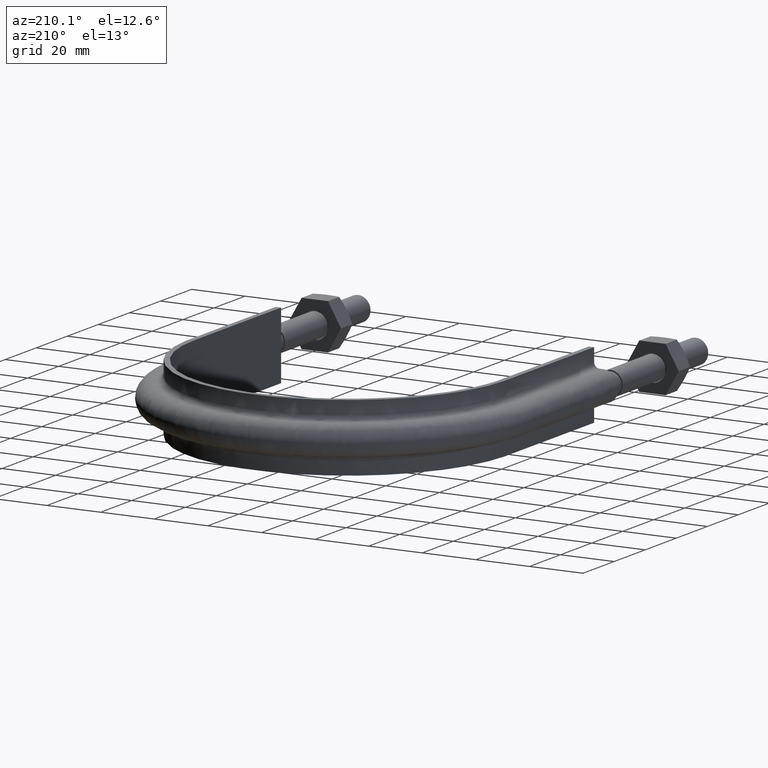
[diagram: clean part render]
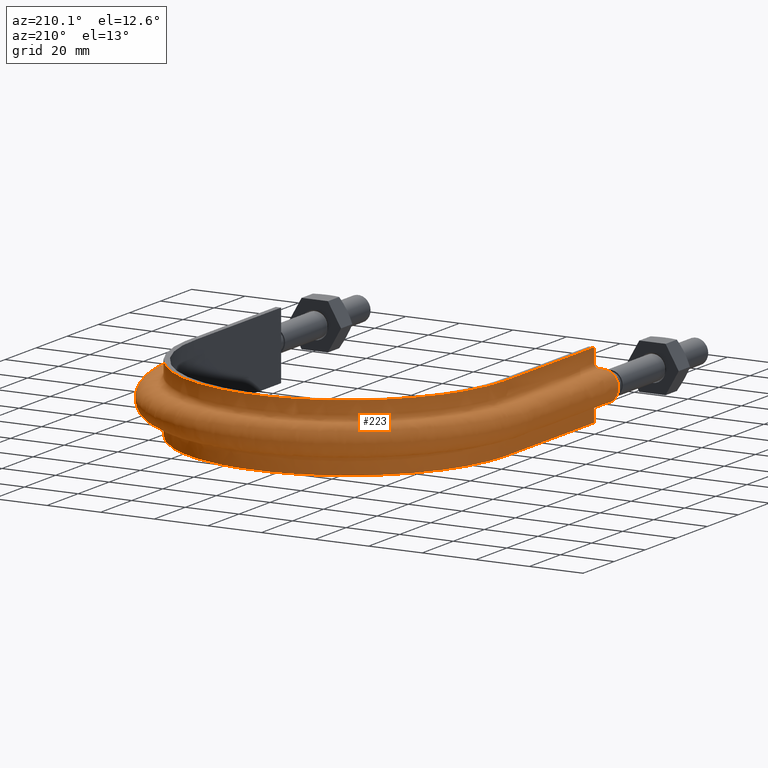
[diagram: same view with one face highlighted and labeled with its STEP entity id]
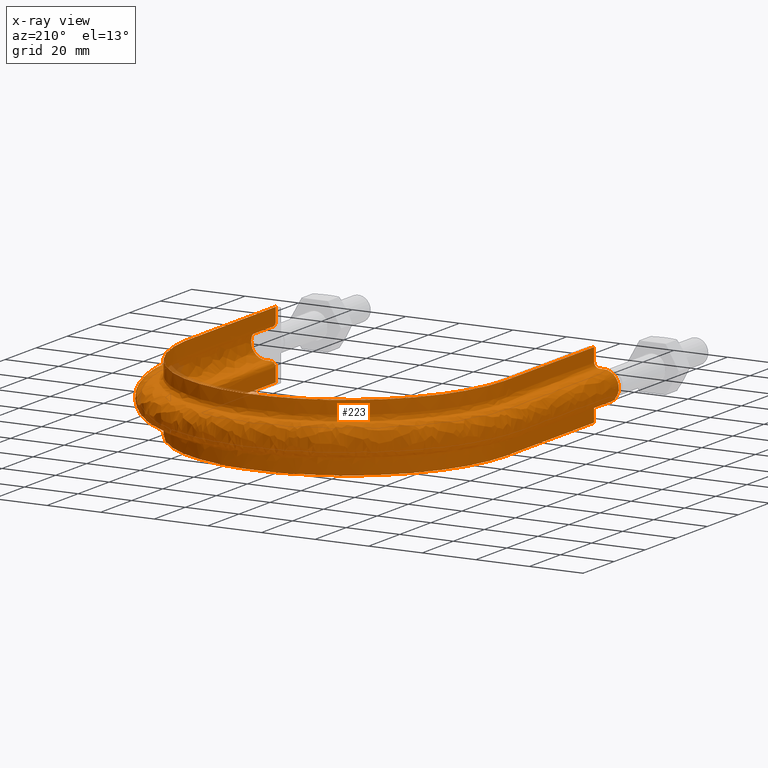
[diagram: x-ray of the same camera — body ghosted, the highlighted face saturated]
A machine part, auxiliary view. The second image highlights one B-rep face of the part: STEP entity #223.
The next image is the same camera in x-ray: the body ghosted, the highlighted face saturated — about 1% of this face is hidden behind the body in this view.
In plain terms, the highlighted face is a freeform B-spline surface patch.
Its self-contained STEP definition (entity closure, byte-faithful):
#223 = ADVANCED_FACE( '', ( #303 ), #304, .F. );
#303 = FACE_OUTER_BOUND( '', #471, .T. );
#304 = B_SPLINE_SURFACE_WITH_KNOTS( '', 3, 3, ( ( #472, #473, #474, #475, #476, #477, #478, #479, #480, #481, #482, #483, #484, #485, #486, #487 ), ( #488, #489, #490, #491, #492, #493, #494, #495, #496, #497, #498, #499, #500, #501, #502, #503 ), ( #504, #505, #506, #507, #508, #509, #510, #511, #512, #513, #514, #515, #516, #517, #518, #519 ), ( #520, #521, #522, #523, #524, #525, #526, #527, #528, #529, #530, #531, #532, #533, #534, #535 ), ( #536, #537, #538, #539, #540, #541, #542, #543, #544, #545, #546, #547, #548, #549, #550, #551 ), ( #552, #553, #554, #555, #556, #557, #558, #559, #560, #561, #562, #563, #564, #565, #566, #567 ), ( #568, #569, #570, #571, #572, #573, #574, #575, #576, #577, #578, #579, #580, #581, #582, #583 ), ( #584, #585, #586, #587, #588, #589, #590, #591, #592, #593, #594, #595, #596, #597, #598, #599 ), ( #600, #601, #602, #603, #604, #605, #606, #607, #608, #609, #610, #611, #612, #613, #614, #615 ), ( #616, #617, #618, #619, #620, #621, #622, #623, #624, #625, #626, #627, #628, #629, #630, #631 ), ( #632, #633, #634, #635, #636, #637, #638, #639, #640, #641, #642, #643, #644, #645, #646, #647 ), ( #648, #649, #650, #651, #652, #653, #654, #655, #656, #657, #658, #659, #660, #661, #662, #663 ), ( #664, #665, #666, #667, #668, #669, #670, #671, #672, #673, #674, #675, #676, #677, #678, #679 ), ( #680, #681, #682, #683, #684, #685, #686, #687, #688, #689, #690, #691, #692, #693, #694, #695 ), ( #696, #697, #698, #699, #700, #701, #702, #703, #704, #705, #706, #707, #708, #709, #710, #711 ), ( #712, #713, #714, #715, #716, #717, #718, #719, #720, #721, #722, #723, #724, #725, #726, #727 ), ( #728, #729, #730, #731, #732, #733, #734, #735, #736, #737, #738, #739, #740, #741, #742, #743 ), ( #744, #745, #746, #747, #748, #749, #750, #751, #752, #753, #754, #755, #756, #757, #758, #759 ), ( #760, #761, #762, #763, #764, #765, #766, #767, #768, #769, #770, #771, #772, #773, #774, #775 ), ( #776, #777, #778, #779, #780, #781, #782, #783, #784, #785, #786, #787, #788, #789, #790, #791 ), ( #792, #793, #794, #795, #796, #797, #798, #799, #800, #801, #802, #803, #804, #805, #806, #807 ), ( #808, #809, #810, #811, #812, #813, #814, #815, #816, #817, #818, #819, #820, #821, #822, #823 ), ( #824, #825, #826, #827, #828, #829, #830, #831, #832, #833, #834, #835, #836, #837, #838, #839 ), ( #840, #841, #842, #843, #844, #845, #846, #847, #848, #849, #850, #851, #852, #853, #854, #855 ), ( #856, #857, #858, #859, #860, #861, #862, #863, #864, #865, #866, #867, #868, #869, #870, #871 ), ( #872, #873, #874, #875, #876, #877, #878, #879, #880, #881, #882, #883, #884, #885, #886, #887 ), ( #888, #889, #890, #891, #892, #893, #894, #895, #896, #897, #898, #899, #900, #901, #902, #903 ), ( #904, #905, #906, #907, #908, #909, #910, #911, #912, #913, #914, #915, #916, #917, #918, #919 ), ( #920, #921, #922, #923, #924, #925, #926, #927, #928, #929, #930, #931, #932, #933, #934, #935 ), ( #936, #937, #938, #939, #940, #941, #942, #943, #944, #945, #946, #947, #948, #949, #950, #951 ), ( #952, #953, #954, #955, #956, #957, #958, #959, #960, #961, #962, #963, #964, #965, #966, #967 ) ), .UNSPECIFIED., .F., .F., .F., ( 4, 3, 1, 1, 1, 3, 3, 1, 1, 1, 3, 3, 1, 1, 1, 3, 4 ), ( 4, 3, 1, 1, 1, 1, 1, 1, 3, 4 ), ( 0.105263157894737, 0.157894736842105, 0.210526315789474, 0.263157894736842, 0.315789473684211, 0.368421052631579, 0.421052631578947, 0.473684210526316, 0.526315789473684, 0.578947368421053, 0.631578947368421, 0.684210526315789, 0.736842105263158, 0.789473684210526, 0.842105263157895, 0.894736842105263, 0.947368421052632 ), ( 0.000000000000000, 1.00000000000000, 2.00000000000000, 3.00000000000000, 4.00000000000000, 5.00000000000000, 6.00000000000000, 7.00000000000000, 8.00000000000000, 9.00000000000000 ), .UNSPECIFIED. );
#471 = EDGE_LOOP( '', ( #1326, #1327, #1328, #1329 ) );
#472 = CARTESIAN_POINT( '', ( -59.4000000000000, 55.5100000000000, 12.5000000000000 ) );
#473 = CARTESIAN_POINT( '', ( -59.4000000000000, 75.5433333333334, 12.5000000000000 ) );
#474 = CARTESIAN_POINT( '', ( -59.4000000000000, 95.5766666666667, 12.5000000000000 ) );
#475 = CARTESIAN_POINT( '', ( -59.4000000000000, 115.610000000000, 12.5000000000000 ) );
#476 = CARTESIAN_POINT( '', ( -59.4000000000000, 124.484817836499, 12.5000000000000 ) );
#477 = CARTESIAN_POINT( '', ( -55.3444933644878, 142.266836188810, 12.5000000000000 ) );
#478 = CARTESIAN_POINT( '', ( -38.2995777447149, 163.635011205915, 12.5000000000000 ) );
#479 = CARTESIAN_POINT( '', ( -13.6689610391051, 175.497859339137, 12.5000000000000 ) );
#480 = CARTESIAN_POINT( '', ( 13.6689610391052, 175.497859339137, 12.5000000000000 ) );
#481 = CARTESIAN_POINT( '', ( 38.2995777447150, 163.635011205915, 12.5000000000000 ) );
#482 = CARTESIAN_POINT( '', ( 55.3444933644878, 142.266836188810, 12.5000000000000 ) );
#483 = CARTESIAN_POINT( '', ( 59.4000000000000, 124.484817836499, 12.5000000000000 ) );
#484 = CARTESIAN_POINT( '', ( 59.4000000000000, 115.610000000000, 12.5000000000000 ) );
#485 = CARTESIAN_POINT( '', ( 59.4000000000000, 95.5766666666666, 12.5000000000000 ) );
#486 = CARTESIAN_POINT( '', ( 59.4000000000000, 75.5433333333333, 12.5000000000000 ) );
#487 = CARTESIAN_POINT( '', ( 59.4000000000000, 55.5100000000000, 12.5000000000000 ) );
#488 = CARTESIAN_POINT( '', ( -59.4000000000000, 55.5100000000000, 10.8666666666667 ) );
#489 = CARTESIAN_POINT( '', ( -59.4000000000000, 75.5433333333334, 10.8666666666667 ) );
#490 = CARTESIAN_POINT( '', ( -59.4000000000000, 95.5766666666667, 10.8666666666667 ) );
#491 = CARTESIAN_POINT( '', ( -59.4000000000000, 115.610000000000, 10.8666666666667 ) );
#492 = CARTESIAN_POINT( '', ( -59.4000000000000, 124.484817836499, 10.8666666666667 ) );
#493 = CARTESIAN_POINT( '', ( -55.3444933644878, 142.266836188810, 10.8666666666667 ) );
#494 = CARTESIAN_POINT( '', ( -38.2995777447149, 163.635011205915, 10.8666666666667 ) );
#495 = CARTESIAN_POINT( '', ( -13.6689610391051, 175.497859339137, 10.8666666666667 ) );
#496 = CARTESIAN_POINT( '', ( 13.6689610391052, 175.497859339137, 10.8666666666667 ) );
#497 = CARTESIAN_POINT( '', ( 38.2995777447150, 163.635011205915, 10.8666666666667 ) );
#498 = CARTESIAN_POINT( '', ( 55.3444933644878, 142.266836188810, 10.8666666666667 ) );
#499 = CARTESIAN_POINT( '', ( 59.4000000000000, 124.484817836499, 10.8666666666667 ) );
#500 = CARTESIAN_POINT( '', ( 59.4000000000000, 115.610000000000, 10.8666666666667 ) );
#501 = CARTESIAN_POINT( '', ( 59.4000000000000, 95.5766666666666, 10.8666666666667 ) );
#502 = CARTESIAN_POINT( '', ( 59.4000000000000, 75.5433333333333, 10.8666666666667 ) );
#503 = CARTESIAN_POINT( '', ( 59.4000000000000, 55.5100000000000, 10.8666666666667 ) );
#504 = CARTESIAN_POINT( '', ( -59.4000000000000, 55.5100000000000, 9.23333333333334 ) );
#505 = CARTESIAN_POINT( '', ( -59.4000000000000, 75.5433333333334, 9.23333333333334 ) );
#506 = CARTESIAN_POINT( '', ( -59.4000000000000, 95.5766666666667, 9.23333333333334 ) );
#507 = CARTESIAN_POINT( '', ( -59.4000000000000, 115.610000000000, 9.23333333333334 ) );
#508 = CARTESIAN_POINT( '', ( -59.4000000000000, 124.484817836499, 9.23333333333334 ) );
#509 = CARTESIAN_POINT( '', ( -55.3444933644878, 142.266836188810, 9.23333333333333 ) );
#510 = CARTESIAN_POINT( '', ( -38.2995777447149, 163.635011205915, 9.23333333333334 ) );
#511 = CARTESIAN_POINT( '', ( -13.6689610391051, 175.497859339138, 9.23333333333334 ) );
#512 = CARTESIAN_POINT( '', ( 13.6689610391052, 175.497859339137, 9.23333333333334 ) );
#513 = CARTESIAN_POINT( '', ( 38.2995777447150, 163.635011205915, 9.23333333333335 ) );
#514 = CARTESIAN_POINT( '', ( 55.3444933644878, 142.266836188810, 9.23333333333334 ) );
#515 = CARTESIAN_POINT( '', ( 59.4000000000000, 124.484817836499, 9.23333333333334 ) );
#516 = CARTESIAN_POINT( '', ( 59.4000000000000, 115.610000000000, 9.23333333333334 ) );
#517 = CARTESIAN_POINT( '', ( 59.4000000000000, 95.5766666666666, 9.23333333333334 ) );
#518 = CARTESIAN_POINT( '', ( 59.4000000000000, 75.5433333333333, 9.23333333333334 ) );
#519 = CARTESIAN_POINT( '', ( 59.4000000000000, 55.5100000000000, 9.23333333333334 ) );
#520 = CARTESIAN_POINT( '', ( -59.4000000000000, 55.5100000000000, 7.60000000000001 ) );
#521 = CARTESIAN_POINT( '', ( -59.4000000000000, 75.5433333333334, 7.60000000000001 ) );
#522 = CARTESIAN_POINT( '', ( -59.4000000000000, 95.5766666666667, 7.60000000000001 ) );
#523 = CARTESIAN_POINT( '', ( -59.4000000000000, 115.610000000000, 7.60000000000001 ) );
#524 = CARTESIAN_POINT( '', ( -59.4000000000000, 124.484817836499, 7.60000000000001 ) );
#525 = CARTESIAN_POINT( '', ( -55.3444933644878, 142.266836188810, 7.60000000000000 ) );
#526 = CARTESIAN_POINT( '', ( -38.2995777447149, 163.635011205915, 7.60000000000001 ) );
#527 = CARTESIAN_POINT( '', ( -13.6689610391051, 175.497859339137, 7.60000000000001 ) );
#528 = CARTESIAN_POINT( '', ( 13.6689610391052, 175.497859339138, 7.60000000000001 ) );
#529 = CARTESIAN_POINT( '', ( 38.2995777447150, 163.635011205915, 7.60000000000002 ) );
#530 = CARTESIAN_POINT( '', ( 55.3444933644878, 142.266836188810, 7.60000000000001 ) );
#531 = CARTESIAN_POINT( '', ( 59.4000000000000, 124.484817836499, 7.60000000000001 ) );
#532 = CARTESIAN_POINT( '', ( 59.4000000000000, 115.610000000000, 7.60000000000001 ) );
#533 = CARTESIAN_POINT( '', ( 59.4000000000000, 95.5766666666666, 7.60000000000001 ) );
#534 = CARTESIAN_POINT( '', ( 59.4000000000000, 75.5433333333333, 7.60000000000001 ) );
#535 = CARTESIAN_POINT( '', ( 59.4000000000000, 55.5100000000000, 7.60000000000001 ) );
#536 = CARTESIAN_POINT( '', ( -59.4000000000000, 55.5100000000000, 7.33823584172335 ) );
#537 = CARTESIAN_POINT( '', ( -59.4000000000000, 75.5433333333334, 7.33823584172335 ) );
#538 = CARTESIAN_POINT( '', ( -59.4000000000000, 95.5766666666667, 7.33823584172335 ) );
#539 = CARTESIAN_POINT( '', ( -59.4000000000000, 115.610000000000, 7.33823584172335 ) );
#540 = CARTESIAN_POINT( '', ( -59.4000000000000, 124.484817836499, 7.33823584172335 ) );
#541 = CARTESIAN_POINT( '', ( -55.3444933644878, 142.266836188810, 7.33823584172334 ) );
#542 = CARTESIAN_POINT( '', ( -38.2995777447149, 163.635011205915, 7.33823584172335 ) );
#543 = CARTESIAN_POINT( '', ( -13.6689610391051, 175.497859339138, 7.33823584172334 ) );
#544 = CARTESIAN_POINT( '', ( 13.6689610391052, 175.497859339137, 7.33823584172335 ) );
#545 = CARTESIAN_POINT( '', ( 38.2995777447150, 163.635011205915, 7.33823584172335 ) );
#546 = CARTESIAN_POINT( '', ( 55.3444933644878, 142.266836188810, 7.33823584172334 ) );
#547 = CARTESIAN_POINT( '', ( 59.4000000000000, 124.484817836499, 7.33823584172334 ) );
#548 = CARTESIAN_POINT( '', ( 59.4000000000000, 115.610000000000, 7.33823584172334 ) );
#549 = CARTESIAN_POINT( '', ( 59.4000000000000, 95.5766666666666, 7.33823584172335 ) );
#550 = CARTESIAN_POINT( '', ( 59.4000000000000, 75.5433333333333, 7.33823584172334 ) );
#551 = CARTESIAN_POINT( '', ( 59.4000000000000, 55.5100000000000, 7.33823584172334 ) );
#552 = CARTESIAN_POINT( '', ( -59.5041362568359, 55.5100000000000, 6.81470752517002 ) );
#553 = CARTESIAN_POINT( '', ( -59.5041362568359, 75.5433333333334, 6.81470752517002 ) );
#554 = CARTESIAN_POINT( '', ( -59.5041362568359, 95.5766666666667, 6.81470752517002 ) );
#555 = CARTESIAN_POINT( '', ( -59.5041362568359, 115.610000000000, 6.81470752517002 ) );
#556 = CARTESIAN_POINT( '', ( -59.5041362568359, 124.500663450545, 6.81470752517002 ) );
#557 = CARTESIAN_POINT( '', ( -55.4415197681150, 142.313436305670, 6.81470752517002 ) );
#558 = CARTESIAN_POINT( '', ( -38.3667220993400, 163.719240546797, 6.81470752517002 ) );
#559 = CARTESIAN_POINT( '', ( -13.6929245818231, 175.602843883112, 6.81470752517001 ) );
#560 = CARTESIAN_POINT( '', ( 13.6929245818232, 175.602843883112, 6.81470752517002 ) );
#561 = CARTESIAN_POINT( '', ( 38.3667220993401, 163.719240546797, 6.81470752517003 ) );
#562 = CARTESIAN_POINT( '', ( 55.4415197681150, 142.313436305670, 6.81470752517002 ) );
#563 = CARTESIAN_POINT( '', ( 59.5041362568359, 124.500663450545, 6.81470752517002 ) );
#564 = CARTESIAN_POINT( '', ( 59.5041362568359, 115.610000000000, 6.81470752517002 ) );
#565 = CARTESIAN_POINT( '', ( 59.5041362568359, 95.5766666666666, 6.81470752517002 ) );
#566 = CARTESIAN_POINT( '', ( 59.5041362568359, 75.5433333333333, 6.81470752517002 ) );
#567 = CARTESIAN_POINT( '', ( 59.5041362568359, 55.5100000000000, 6.81470752517002 ) );
#568 = CARTESIAN_POINT( '', ( -59.9489687109389, 55.5100000000000, 6.14896871093889 ) );
#569 = CARTESIAN_POINT( '', ( -59.9489687109389, 75.5433333333334, 6.14896871093889 ) );
#570 = CARTESIAN_POINT( '', ( -59.9489687109389, 95.5766666666667, 6.14896871093889 ) );
#571 = CARTESIAN_POINT( '', ( -59.9489687109389, 115.610000000000, 6.14896871093889 ) );
#572 = CARTESIAN_POINT( '', ( -59.9489687109389, 124.568350187109, 6.14896871093889 ) );
#573 = CARTESIAN_POINT( '', ( -55.8559814988290, 142.512495163498, 6.14896871093888 ) );
#574 = CARTESIAN_POINT( '', ( -38.6535385161630, 164.079037850355, 6.14896871093889 ) );
#575 = CARTESIAN_POINT( '', ( -13.7952881758309, 176.051299913300, 6.14896871093888 ) );
#576 = CARTESIAN_POINT( '', ( 13.7952881758310, 176.051299913300, 6.14896871093889 ) );
#577 = CARTESIAN_POINT( '', ( 38.6535385161631, 164.079037850355, 6.14896871093889 ) );
#578 = CARTESIAN_POINT( '', ( 55.8559814988290, 142.512495163498, 6.14896871093888 ) );
#579 = CARTESIAN_POINT( '', ( 59.9489687109389, 124.568350187109, 6.14896871093888 ) );
#580 = CARTESIAN_POINT( '', ( 59.9489687109389, 115.610000000000, 6.14896871093888 ) );
#581 = CARTESIAN_POINT( '', ( 59.9489687109389, 95.5766666666666, 6.14896871093889 ) );
#582 = CARTESIAN_POINT( '', ( 59.9489687109389, 75.5433333333333, 6.14896871093888 ) );
#583 = CARTESIAN_POINT( '', ( 59.9489687109389, 55.5100000000000, 6.14896871093888 ) );
#584 = CARTESIAN_POINT( '', ( -60.6147075251700, 55.5100000000000, 5.70413625683592 ) );
#585 = CARTESIAN_POINT( '', ( -60.6147075251700, 75.5433333333334, 5.70413625683592 ) );
#586 = CARTESIAN_POINT( '', ( -60.6147075251700, 95.5766666666667, 5.70413625683592 ) );
#587 = CARTESIAN_POINT( '', ( -60.6147075251700, 115.610000000000, 5.70413625683592 ) );
#588 = CARTESIAN_POINT( '', ( -60.6147075251700, 124.669650547107, 5.70413625683592 ) );
#589 = CARTESIAN_POINT( '', ( -56.4762673134198, 142.810407797233, 5.70413625683591 ) );
#590 = CARTESIAN_POINT( '', ( -39.0827896184075, 164.617512568251, 5.70413625683592 ) );
#591 = CARTESIAN_POINT( '', ( -13.9484861205101, 176.722461792381, 5.70413625683592 ) );
#592 = CARTESIAN_POINT( '', ( 13.9484861205102, 176.722461792381, 5.70413625683592 ) );
#593 = CARTESIAN_POINT( '', ( 39.0827896184075, 164.617512568251, 5.70413625683592 ) );
#594 = CARTESIAN_POINT( '', ( 56.4762673134199, 142.810407797233, 5.70413625683592 ) );
#595 = CARTESIAN_POINT( '', ( 60.6147075251700, 124.669650547107, 5.70413625683591 ) );
#596 = CARTESIAN_POINT( '', ( 60.6147075251700, 115.610000000000, 5.70413625683591 ) );
#597 = CARTESIAN_POINT( '', ( 60.6147075251700, 95.5766666666666, 5.70413625683592 ) );
#598 = CARTESIAN_POINT( '', ( 60.6147075251700, 75.5433333333333, 5.70413625683591 ) );
#599 = CARTESIAN_POINT( '', ( 60.6147075251700, 55.5100000000000, 5.70413625683591 ) );
#600 = CARTESIAN_POINT( '', ( -61.1382358417233, 55.5100000000000, 5.60000000000001 ) );
#601 = CARTESIAN_POINT( '', ( -61.1382358417233, 75.5433333333334, 5.60000000000001 ) );
#602 = CARTESIAN_POINT( '', ( -61.1382358417233, 95.5766666666667, 5.60000000000001 ) );
#603 = CARTESIAN_POINT( '', ( -61.1382358417233, 115.610000000000, 5.60000000000001 ) );
#604 = CARTESIAN_POINT( '', ( -61.1382358417233, 124.749311828382, 5.60000000000001 ) );
#605 = CARTESIAN_POINT( '', ( -56.9640519841539, 143.044682405060, 5.60000000000000 ) );
#606 = CARTESIAN_POINT( '', ( -39.4203470840875, 165.040962060065, 5.60000000000001 ) );
#607 = CARTESIAN_POINT( '', ( -14.0689589851875, 177.250254736369, 5.60000000000001 ) );
#608 = CARTESIAN_POINT( '', ( 14.0689589851876, 177.250254736369, 5.60000000000001 ) );
#609 = CARTESIAN_POINT( '', ( 39.4203470840876, 165.040962060065, 5.60000000000001 ) );
#610 = CARTESIAN_POINT( '', ( 56.9640519841540, 143.044682405060, 5.60000000000001 ) );
#611 = CARTESIAN_POINT( '', ( 61.1382358417234, 124.749311828382, 5.60000000000001 ) );
#612 = CARTESIAN_POINT( '', ( 61.1382358417234, 115.610000000000, 5.60000000000001 ) );
#613 = CARTESIAN_POINT( '', ( 61.1382358417234, 95.5766666666666, 5.60000000000001 ) );
#614 = CARTESIAN_POINT( '', ( 61.1382358417234, 75.5433333333333, 5.60000000000001 ) );
#615 = CARTESIAN_POINT( '', ( 61.1382358417234, 55.5100000000000, 5.60000000000001 ) );
#616 = CARTESIAN_POINT( '', ( -61.4000000000000, 55.5100000000000, 5.60000000000001 ) );
#617 = CARTESIAN_POINT( '', ( -61.4000000000000, 75.5433333333334, 5.60000000000001 ) );
#618 = CARTESIAN_POINT( '', ( -61.4000000000000, 95.5766666666667, 5.60000000000001 ) );
#619 = CARTESIAN_POINT( '', ( -61.4000000000000, 115.610000000000, 5.60000000000001 ) );
#620 = CARTESIAN_POINT( '', ( -61.4000000000000, 124.789142469019, 5.60000000000001 ) );
#621 = CARTESIAN_POINT( '', ( -57.2079443195210, 143.161819708974, 5.60000000000000 ) );
#622 = CARTESIAN_POINT( '', ( -39.5891258169275, 165.252686805971, 5.60000000000001 ) );
#623 = CARTESIAN_POINT( '', ( -14.1291954175262, 177.514151208362, 5.60000000000001 ) );
#624 = CARTESIAN_POINT( '', ( 14.1291954175263, 177.514151208363, 5.60000000000001 ) );
#625 = CARTESIAN_POINT( '', ( 39.5891258169276, 165.252686805971, 5.60000000000001 ) );
#626 = CARTESIAN_POINT( '', ( 57.2079443195211, 143.161819708974, 5.60000000000001 ) );
#627 = CARTESIAN_POINT( '', ( 61.4000000000000, 124.789142469019, 5.60000000000001 ) );
#628 = CARTESIAN_POINT( '', ( 61.4000000000000, 115.610000000000, 5.60000000000001 ) );
#629 = CARTESIAN_POINT( '', ( 61.4000000000000, 95.5766666666666, 5.60000000000001 ) );
#630 = CARTESIAN_POINT( '', ( 61.4000000000000, 75.5433333333333, 5.60000000000001 ) );
#631 = CARTESIAN_POINT( '', ( 61.4000000000000, 55.5100000000000, 5.60000000000001 ) );
#632 = CARTESIAN_POINT( '', ( -61.9333333333333, 55.5100000000000, 5.60000000000000 ) );
#633 = CARTESIAN_POINT( '', ( -61.9333333333333, 75.5433333333334, 5.60000000000000 ) );
#634 = CARTESIAN_POINT( '', ( -61.9333333333333, 95.5766666666667, 5.60000000000000 ) );
#635 = CARTESIAN_POINT( '', ( -61.9333333333333, 115.610000000000, 5.60000000000000 ) );
#636 = CARTESIAN_POINT( '', ( -61.9333333333333, 124.870295704358, 5.60000000000000 ) );
#637 = CARTESIAN_POINT( '', ( -57.7048645741966, 143.400481981018, 5.60000000000000 ) );
#638 = CARTESIAN_POINT( '', ( -39.9330053028509, 165.684066965987, 5.60000000000000 ) );
#639 = CARTESIAN_POINT( '', ( -14.2519245851051, 178.051829040156, 5.60000000000000 ) );
#640 = CARTESIAN_POINT( '', ( 14.2519245851052, 178.051829040156, 5.60000000000000 ) );
#641 = CARTESIAN_POINT( '', ( 39.9330053028510, 165.684066965987, 5.60000000000001 ) );
#642 = CARTESIAN_POINT( '', ( 57.7048645741966, 143.400481981018, 5.60000000000000 ) );
#643 = CARTESIAN_POINT( '', ( 61.9333333333334, 124.870295704358, 5.60000000000000 ) );
#644 = CARTESIAN_POINT( '', ( 61.9333333333334, 115.610000000000, 5.60000000000000 ) );
#645 = CARTESIAN_POINT( '', ( 61.9333333333334, 95.5766666666666, 5.60000000000000 ) );
#646 = CARTESIAN_POINT( '', ( 61.9333333333333, 75.5433333333333, 5.60000000000000 ) );
#647 = CARTESIAN_POINT( '', ( 61.9333333333333, 55.5100000000000, 5.60000000000000 ) );
#648 = CARTESIAN_POINT( '', ( -62.4666666666667, 55.5100000000000, 5.60000000000000 ) );
#649 = CARTESIAN_POINT( '', ( -62.4666666666666, 75.5433333333334, 5.60000000000000 ) );
#650 = CARTESIAN_POINT( '', ( -62.4666666666666, 95.5766666666667, 5.60000000000000 ) );
#651 = CARTESIAN_POINT( '', ( -62.4666666666666, 115.610000000000, 5.60000000000000 ) );
#652 = CARTESIAN_POINT( '', ( -62.4666666666666, 124.951448939696, 5.60000000000000 ) );
#653 = CARTESIAN_POINT( '', ( -58.2017848288721, 143.639144253061, 5.60000000000000 ) );
#654 = CARTESIAN_POINT( '', ( -40.2768847887742, 166.115447126002, 5.60000000000000 ) );
#655 = CARTESIAN_POINT( '', ( -14.3746537526841, 178.589506871949, 5.60000000000000 ) );
#656 = CARTESIAN_POINT( '', ( 14.3746537526842, 178.589506871949, 5.60000000000000 ) );
#657 = CARTESIAN_POINT( '', ( 40.2768847887743, 166.115447126002, 5.60000000000001 ) );
#658 = CARTESIAN_POINT( '', ( 58.2017848288721, 143.639144253061, 5.60000000000000 ) );
#659 = CARTESIAN_POINT( '', ( 62.4666666666667, 124.951448939696, 5.60000000000000 ) );
#660 = CARTESIAN_POINT( '', ( 62.4666666666667, 115.610000000000, 5.60000000000000 ) );
#661 = CARTESIAN_POINT( '', ( 62.4666666666667, 95.5766666666666, 5.60000000000000 ) );
#662 = CARTESIAN_POINT( '', ( 62.4666666666667, 75.5433333333333, 5.60000000000000 ) );
#663 = CARTESIAN_POINT( '', ( 62.4666666666667, 55.5100000000000, 5.60000000000000 ) );
#664 = CARTESIAN_POINT( '', ( -63.0000000000000, 55.5100000000000, 5.60000000000000 ) );
#665 = CARTESIAN_POINT( '', ( -63.0000000000000, 75.5433333333334, 5.60000000000000 ) );
#666 = CARTESIAN_POINT( '', ( -63.0000000000000, 95.5766666666667, 5.60000000000000 ) );
#667 = CARTESIAN_POINT( '', ( -63.0000000000000, 115.610000000000, 5.60000000000000 ) );
#668 = CARTESIAN_POINT( '', ( -63.0000000000000, 125.032602175035, 5.60000000000000 ) );
#669 = CARTESIAN_POINT( '', ( -58.6987050835476, 143.877806525105, 5.60000000000000 ) );
#670 = CARTESIAN_POINT( '', ( -40.6207642746976, 166.546827286017, 5.60000000000000 ) );
#671 = CARTESIAN_POINT( '', ( -14.4973829202630, 179.127184703742, 5.60000000000000 ) );
#672 = CARTESIAN_POINT( '', ( 14.4973829202631, 179.127184703743, 5.60000000000000 ) );
#673 = CARTESIAN_POINT( '', ( 40.6207642746977, 166.546827286017, 5.60000000000001 ) );
#674 = CARTESIAN_POINT( '', ( 58.6987050835477, 143.877806525105, 5.60000000000000 ) );
#675 = CARTESIAN_POINT( '', ( 63.0000000000000, 125.032602175035, 5.60000000000000 ) );
#676 = CARTESIAN_POINT( '', ( 63.0000000000000, 115.610000000000, 5.60000000000000 ) );
#677 = CARTESIAN_POINT( '', ( 63.0000000000000, 95.5766666666666, 5.60000000000000 ) );
#678 = CARTESIAN_POINT( '', ( 63.0000000000000, 75.5433333333333, 5.60000000000000 ) );
#679 = CARTESIAN_POINT( '', ( 63.0000000000000, 55.5100000000000, 5.60000000000000 ) );
#680 = CARTESIAN_POINT( '', ( -64.4627416997970, 55.5100000000000, 5.60000000000001 ) );
#681 = CARTESIAN_POINT( '', ( -64.4627416997969, 75.5433333333334, 5.60000000000001 ) );
#682 = CARTESIAN_POINT( '', ( -64.4627416997969, 95.5766666666667, 5.60000000000001 ) );
#683 = CARTESIAN_POINT( '', ( -64.4627416997969, 115.610000000000, 5.60000000000001 ) );
#684 = CARTESIAN_POINT( '', ( -64.4627416997969, 125.255176340166, 5.60000000000001 ) );
#685 = CARTESIAN_POINT( '', ( -60.0615787922744, 144.532371382892, 5.60000000000000 ) );
#686 = CARTESIAN_POINT( '', ( -41.5639021442567, 167.729948064491, 5.60000000000001 ) );
#687 = CARTESIAN_POINT( '', ( -14.8339849287613, 180.601841801781, 5.60000000000001 ) );
#688 = CARTESIAN_POINT( '', ( 14.8339849287614, 180.601841801781, 5.60000000000001 ) );
#689 = CARTESIAN_POINT( '', ( 41.5639021442568, 167.729948064491, 5.60000000000001 ) );
#690 = CARTESIAN_POINT( '', ( 60.0615787922745, 144.532371382892, 5.60000000000001 ) );
#691 = CARTESIAN_POINT( '', ( 64.4627416997970, 125.255176340166, 5.60000000000001 ) );
#692 = CARTESIAN_POINT( '', ( 64.4627416997970, 115.610000000000, 5.60000000000001 ) );
#693 = CARTESIAN_POINT( '', ( 64.4627416997970, 95.5766666666666, 5.60000000000001 ) );
#694 = CARTESIAN_POINT( '', ( 64.4627416997970, 75.5433333333333, 5.60000000000001 ) );
#695 = CARTESIAN_POINT( '', ( 64.4627416997970, 55.5100000000000, 5.60000000000001 ) );
#696 = CARTESIAN_POINT( '', ( -67.3882250993909, 55.5100000000000, 4.38822509939086 ) );
#697 = CARTESIAN_POINT( '', ( -67.3882250993908, 75.5433333333334, 4.38822509939086 ) );
#698 = CARTESIAN_POINT( '', ( -67.3882250993908, 95.5766666666667, 4.38822509939086 ) );
#699 = CARTESIAN_POINT( '', ( -67.3882250993908, 115.610000000000, 4.38822509939086 ) );
#700 = CARTESIAN_POINT( '', ( -67.3882250993908, 125.700324670429, 4.38822509939086 ) );
#701 = CARTESIAN_POINT( '', ( -62.7873262097280, 145.841501098467, 4.38822509939086 ) );
#702 = CARTESIAN_POINT( '', ( -43.4501778833749, 170.096189621438, 4.38822509939086 ) );
#703 = CARTESIAN_POINT( '', ( -15.5071889457579, 183.551155997858, 4.38822509939086 ) );
#704 = CARTESIAN_POINT( '', ( 15.5071889457580, 183.551155997858, 4.38822509939086 ) );
#705 = CARTESIAN_POINT( '', ( 43.4501778833750, 170.096189621438, 4.38822509939087 ) );
#706 = CARTESIAN_POINT( '', ( 62.7873262097281, 145.841501098467, 4.38822509939086 ) );
#707 = CARTESIAN_POINT( '', ( 67.3882250993909, 125.700324670429, 4.38822509939086 ) );
#708 = CARTESIAN_POINT( '', ( 67.3882250993909, 115.610000000000, 4.38822509939086 ) );
#709 = CARTESIAN_POINT( '', ( 67.3882250993909, 95.5766666666666, 4.38822509939086 ) );
#710 = CARTESIAN_POINT( '', ( 67.3882250993909, 75.5433333333333, 4.38822509939086 ) );
#711 = CARTESIAN_POINT( '', ( 67.3882250993909, 55.5100000000000, 4.38822509939086 ) );
#712 = CARTESIAN_POINT( '', ( -69.2058874503046, 55.5100000000000, 1.38308419891421E-015 ) );
#713 = CARTESIAN_POINT( '', ( -69.2058874503045, 75.5433333333334, 1.38308419891421E-015 ) );
#714 = CARTESIAN_POINT( '', ( -69.2058874503045, 95.5766666666667, 1.38308419891421E-015 ) );
#715 = CARTESIAN_POINT( '', ( -69.2058874503045, 115.610000000000, 1.38308419891421E-015 ) );
#716 = CARTESIAN_POINT( '', ( -69.2058874503045, 125.976904383923, 1.38308419891421E-015 ) );
#717 = CARTESIAN_POINT( '', ( -64.4808885315971, 146.654890023112, 1.38308419891421E-015 ) );
#718 = CARTESIAN_POINT( '', ( -44.6221593736520, 171.566383638545, 1.38308419891421E-015 ) );
#719 = CARTESIAN_POINT( '', ( -15.9254642968840, 185.383624907430, 1.38308419891421E-015 ) );
#720 = CARTESIAN_POINT( '', ( 15.9254642968841, 185.383624907430, 1.38308419891421E-015 ) );
#721 = CARTESIAN_POINT( '', ( 44.6221593736521, 171.566383638545, 1.38308419891421E-015 ) );
#722 = CARTESIAN_POINT( '', ( 64.4808885315971, 146.654890023112, 1.38308419891421E-015 ) );
#723 = CARTESIAN_POINT( '', ( 69.2058874503046, 125.976904383923, 1.38308419891421E-015 ) );
#724 = CARTESIAN_POINT( '', ( 69.2058874503046, 115.610000000000, 1.38308419891421E-015 ) );
#725 = CARTESIAN_POINT( '', ( 69.2058874503046, 95.5766666666666, 1.38308419891421E-015 ) );
#726 = CARTESIAN_POINT( '', ( 69.2058874503046, 75.5433333333333, 1.38308419891421E-015 ) );
#727 = CARTESIAN_POINT( '', ( 69.2058874503046, 55.5100000000000, 1.38308419891421E-015 ) );
#728 = CARTESIAN_POINT( '', ( -67.3882250993909, 55.5100000000000, -4.38822509939086 ) );
#729 = CARTESIAN_POINT( '', ( -67.3882250993908, 75.5433333333334, -4.38822509939086 ) );
#730 = CARTESIAN_POINT( '', ( -67.3882250993908, 95.5766666666667, -4.38822509939086 ) );
#731 = CARTESIAN_POINT( '', ( -67.3882250993908, 115.610000000000, -4.38822509939086 ) );
#732 = CARTESIAN_POINT( '', ( -67.3882250993908, 125.700324670429, -4.38822509939086 ) );
#733 = CARTESIAN_POINT( '', ( -62.7873262097280, 145.841501098467, -4.38822509939086 ) );
#734 = CARTESIAN_POINT( '', ( -43.4501778833749, 170.096189621438, -4.38822509939086 ) );
#735 = CARTESIAN_POINT( '', ( -15.5071889457579, 183.551155997858, -4.38822509939086 ) );
#736 = CARTESIAN_POINT( '', ( 15.5071889457580, 183.551155997858, -4.38822509939086 ) );
#737 = CARTESIAN_POINT( '', ( 43.4501778833750, 170.096189621438, -4.38822509939087 ) );
#738 = CARTESIAN_POINT( '', ( 62.7873262097281, 145.841501098467, -4.38822509939086 ) );
#739 = CARTESIAN_POINT( '', ( 67.3882250993909, 125.700324670429, -4.38822509939086 ) );
#740 = CARTESIAN_POINT( '', ( 67.3882250993909, 115.610000000000, -4.38822509939086 ) );
#741 = CARTESIAN_POINT( '', ( 67.3882250993909, 95.5766666666666, -4.38822509939086 ) );
#742 = CARTESIAN_POINT( '', ( 67.3882250993909, 75.5433333333333, -4.38822509939086 ) );
#743 = CARTESIAN_POINT( '', ( 67.3882250993909, 55.5100000000000, -4.38822509939086 ) );
#744 = CARTESIAN_POINT( '', ( -64.4627416997970, 55.5100000000000, -5.60000000000001 ) );
#745 = CARTESIAN_POINT( '', ( -64.4627416997969, 75.5433333333334, -5.60000000000001 ) );
#746 = CARTESIAN_POINT( '', ( -64.4627416997969, 95.5766666666667, -5.60000000000001 ) );
#747 = CARTESIAN_POINT( '', ( -64.4627416997969, 115.610000000000, -5.60000000000001 ) );
#748 = CARTESIAN_POINT( '', ( -64.4627416997969, 125.255176340166, -5.60000000000001 ) );
#749 = CARTESIAN_POINT( '', ( -60.0615787922744, 144.532371382892, -5.60000000000000 ) );
#750 = CARTESIAN_POINT( '', ( -41.5639021442567, 167.729948064491, -5.60000000000001 ) );
#751 = CARTESIAN_POINT( '', ( -14.8339849287613, 180.601841801781, -5.60000000000000 ) );
#752 = CARTESIAN_POINT( '', ( 14.8339849287614, 180.601841801781, -5.60000000000001 ) );
#753 = CARTESIAN_POINT( '', ( 41.5639021442568, 167.729948064491, -5.60000000000001 ) );
#754 = CARTESIAN_POINT( '', ( 60.0615787922745, 144.532371382892, -5.60000000000000 ) );
#755 = CARTESIAN_POINT( '', ( 64.4627416997970, 125.255176340166, -5.60000000000000 ) );
#756 = CARTESIAN_POINT( '', ( 64.4627416997970, 115.610000000000, -5.60000000000000 ) );
#757 = CARTESIAN_POINT( '', ( 64.4627416997970, 95.5766666666666, -5.60000000000001 ) );
#758 = CARTESIAN_POINT( '', ( 64.4627416997970, 75.5433333333333, -5.60000000000000 ) );
#759 = CARTESIAN_POINT( '', ( 64.4627416997970, 55.5100000000000, -5.60000000000000 ) );
#760 = CARTESIAN_POINT( '', ( -63.0000000000000, 55.5100000000000, -5.60000000000001 ) );
#761 = CARTESIAN_POINT( '', ( -63.0000000000000, 75.5433333333334, -5.60000000000001 ) );
#762 = CARTESIAN_POINT( '', ( -63.0000000000000, 95.5766666666667, -5.60000000000001 ) );
#763 = CARTESIAN_POINT( '', ( -63.0000000000000, 115.610000000000, -5.60000000000001 ) );
#764 = CARTESIAN_POINT( '', ( -63.0000000000000, 125.032602175035, -5.60000000000001 ) );
#765 = CARTESIAN_POINT( '', ( -58.6987050835476, 143.877806525105, -5.60000000000000 ) );
#766 = CARTESIAN_POINT( '', ( -40.6207642746976, 166.546827286017, -5.60000000000001 ) );
#767 = CARTESIAN_POINT( '', ( -14.4973829202630, 179.127184703742, -5.60000000000000 ) );
#768 = CARTESIAN_POINT( '', ( 14.4973829202631, 179.127184703743, -5.60000000000001 ) );
#769 = CARTESIAN_POINT( '', ( 40.6207642746977, 166.546827286017, -5.60000000000001 ) );
#770 = CARTESIAN_POINT( '', ( 58.6987050835477, 143.877806525105, -5.60000000000000 ) );
#771 = CARTESIAN_POINT( '', ( 63.0000000000000, 125.032602175035, -5.60000000000000 ) );
#772 = CARTESIAN_POINT( '', ( 63.0000000000000, 115.610000000000, -5.60000000000000 ) );
#773 = CARTESIAN_POINT( '', ( 63.0000000000000, 95.5766666666666, -5.60000000000001 ) );
#774 = CARTESIAN_POINT( '', ( 63.0000000000000, 75.5433333333333, -5.60000000000000 ) );
#775 = CARTESIAN_POINT( '', ( 63.0000000000000, 55.5100000000000, -5.60000000000000 ) );
#776 = CARTESIAN_POINT( '', ( -62.4666666666667, 55.5100000000000, -5.60000000000000 ) );
#777 = CARTESIAN_POINT( '', ( -62.4666666666666, 75.5433333333334, -5.60000000000000 ) );
#778 = CARTESIAN_POINT( '', ( -62.4666666666666, 95.5766666666667, -5.60000000000000 ) );
#779 = CARTESIAN_POINT( '', ( -62.4666666666666, 115.610000000000, -5.60000000000000 ) );
#780 = CARTESIAN_POINT( '', ( -62.4666666666666, 124.951448939696, -5.60000000000000 ) );
#781 = CARTESIAN_POINT( '', ( -58.2017848288721, 143.639144253061, -5.59999999999999 ) );
#782 = CARTESIAN_POINT( '', ( -40.2768847887743, 166.115447126002, -5.60000000000000 ) );
#783 = CARTESIAN_POINT( '', ( -14.3746537526841, 178.589506871949, -5.60000000000000 ) );
#784 = CARTESIAN_POINT( '', ( 14.3746537526842, 178.589506871949, -5.60000000000000 ) );
#785 = CARTESIAN_POINT( '', ( 40.2768847887743, 166.115447126002, -5.60000000000000 ) );
#786 = CARTESIAN_POINT( '', ( 58.2017848288721, 143.639144253061, -5.60000000000000 ) );
#787 = CARTESIAN_POINT( '', ( 62.4666666666667, 124.951448939696, -5.59999999999999 ) );
#788 = CARTESIAN_POINT( '', ( 62.4666666666667, 115.610000000000, -5.59999999999999 ) );
#789 = CARTESIAN_POINT( '', ( 62.4666666666667, 95.5766666666666, -5.60000000000000 ) );
#790 = CARTESIAN_POINT( '', ( 62.4666666666667, 75.5433333333333, -5.59999999999999 ) );
#791 = CARTESIAN_POINT( '', ( 62.4666666666667, 55.5100000000000, -5.59999999999999 ) );
#792 = CARTESIAN_POINT( '', ( -61.9333333333333, 55.5100000000000, -5.60000000000000 ) );
#793 = CARTESIAN_POINT( '', ( -61.9333333333333, 75.5433333333334, -5.60000000000000 ) );
#794 = CARTESIAN_POINT( '', ( -61.9333333333333, 95.5766666666667, -5.60000000000000 ) );
#795 = CARTESIAN_POINT( '', ( -61.9333333333333, 115.610000000000, -5.60000000000000 ) );
#796 = CARTESIAN_POINT( '', ( -61.9333333333333, 124.870295704358, -5.60000000000000 ) );
#797 = CARTESIAN_POINT( '', ( -57.7048645741966, 143.400481981018, -5.59999999999999 ) );
#798 = CARTESIAN_POINT( '', ( -39.9330053028509, 165.684066965987, -5.60000000000000 ) );
#799 = CARTESIAN_POINT( '', ( -14.2519245851051, 178.051829040156, -5.59999999999999 ) );
#800 = CARTESIAN_POINT( '', ( 14.2519245851052, 178.051829040156, -5.60000000000000 ) );
#801 = CARTESIAN_POINT( '', ( 39.9330053028510, 165.684066965987, -5.60000000000000 ) );
#802 = CARTESIAN_POINT( '', ( 57.7048645741966, 143.400481981018, -5.59999999999999 ) );
#803 = CARTESIAN_POINT( '', ( 61.9333333333333, 124.870295704358, -5.59999999999999 ) );
#804 = CARTESIAN_POINT( '', ( 61.9333333333333, 115.610000000000, -5.59999999999999 ) );
#805 = CARTESIAN_POINT( '', ( 61.9333333333333, 95.5766666666666, -5.60000000000000 ) );
#806 = CARTESIAN_POINT( '', ( 61.9333333333333, 75.5433333333333, -5.59999999999999 ) );
#807 = CARTESIAN_POINT( '', ( 61.9333333333333, 55.5100000000000, -5.59999999999999 ) );
#808 = CARTESIAN_POINT( '', ( -61.4000000000000, 55.5100000000000, -5.60000000000000 ) );
#809 = CARTESIAN_POINT( '', ( -61.4000000000000, 75.5433333333334, -5.60000000000000 ) );
#810 = CARTESIAN_POINT( '', ( -61.4000000000000, 95.5766666666667, -5.60000000000000 ) );
#811 = CARTESIAN_POINT( '', ( -61.4000000000000, 115.610000000000, -5.60000000000000 ) );
#812 = CARTESIAN_POINT( '', ( -61.4000000000000, 124.789142469019, -5.60000000000000 ) );
#813 = CARTESIAN_POINT( '', ( -57.2079443195210, 143.161819708974, -5.59999999999999 ) );
#814 = CARTESIAN_POINT( '', ( -39.5891258169275, 165.252686805971, -5.60000000000000 ) );
#815 = CARTESIAN_POINT( '', ( -14.1291954175262, 177.514151208362, -5.59999999999999 ) );
#816 = CARTESIAN_POINT( '', ( 14.1291954175263, 177.514151208363, -5.60000000000000 ) );
#817 = CARTESIAN_POINT( '', ( 39.5891258169276, 165.252686805971, -5.60000000000000 ) );
#818 = CARTESIAN_POINT( '', ( 57.2079443195211, 143.161819708974, -5.59999999999999 ) );
#819 = CARTESIAN_POINT( '', ( 61.4000000000000, 124.789142469019, -5.59999999999999 ) );
#820 = CARTESIAN_POINT( '', ( 61.4000000000000, 115.610000000000, -5.59999999999999 ) );
#821 = CARTESIAN_POINT( '', ( 61.4000000000000, 95.5766666666666, -5.60000000000000 ) );
#822 = CARTESIAN_POINT( '', ( 61.4000000000000, 75.5433333333333, -5.59999999999999 ) );
#823 = CARTESIAN_POINT( '', ( 61.4000000000000, 55.5100000000000, -5.59999999999999 ) );
#824 = CARTESIAN_POINT( '', ( -61.1382358417233, 55.5100000000000, -5.60000000000000 ) );
#825 = CARTESIAN_POINT( '', ( -61.1382358417233, 75.5433333333334, -5.60000000000000 ) );
#826 = CARTESIAN_POINT( '', ( -61.1382358417233, 95.5766666666667, -5.60000000000000 ) );
#827 = CARTESIAN_POINT( '', ( -61.1382358417233, 115.610000000000, -5.60000000000000 ) );
#828 = CARTESIAN_POINT( '', ( -61.1382358417233, 124.749311828382, -5.60000000000000 ) );
#829 = CARTESIAN_POINT( '', ( -56.9640519841539, 143.044682405060, -5.59999999999999 ) );
#830 = CARTESIAN_POINT( '', ( -39.4203470840875, 165.040962060065, -5.60000000000000 ) );
#831 = CARTESIAN_POINT( '', ( -14.0689589851875, 177.250254736369, -5.59999999999999 ) );
#832 = CARTESIAN_POINT( '', ( 14.0689589851876, 177.250254736369, -5.60000000000000 ) );
#833 = CARTESIAN_POINT( '', ( 39.4203470840876, 165.040962060065, -5.60000000000000 ) );
#834 = CARTESIAN_POINT( '', ( 56.9640519841540, 143.044682405060, -5.59999999999999 ) );
#835 = CARTESIAN_POINT( '', ( 61.1382358417233, 124.749311828382, -5.59999999999999 ) );
#836 = CARTESIAN_POINT( '', ( 61.1382358417233, 115.610000000000, -5.59999999999999 ) );
#837 = CARTESIAN_POINT( '', ( 61.1382358417233, 95.5766666666666, -5.60000000000000 ) );
#838 = CARTESIAN_POINT( '', ( 61.1382358417233, 75.5433333333333, -5.59999999999999 ) );
#839 = CARTESIAN_POINT( '', ( 61.1382358417233, 55.5100000000000, -5.59999999999999 ) );
#840 = CARTESIAN_POINT( '', ( -60.6147075251700, 55.5100000000000, -5.70413625683591 ) );
#841 = CARTESIAN_POINT( '', ( -60.6147075251700, 75.5433333333334, -5.70413625683591 ) );
#842 = CARTESIAN_POINT( '', ( -60.6147075251700, 95.5766666666667, -5.70413625683591 ) );
#843 = CARTESIAN_POINT( '', ( -60.6147075251700, 115.610000000000, -5.70413625683591 ) );
#844 = CARTESIAN_POINT( '', ( -60.6147075251700, 124.669650547107, -5.70413625683591 ) );
#845 = CARTESIAN_POINT( '', ( -56.4762673134198, 142.810407797233, -5.70413625683590 ) );
#846 = CARTESIAN_POINT( '', ( -39.0827896184075, 164.617512568251, -5.70413625683591 ) );
#847 = CARTESIAN_POINT( '', ( -13.9484861205101, 176.722461792381, -5.70413625683590 ) );
#848 = CARTESIAN_POINT( '', ( 13.9484861205102, 176.722461792381, -5.70413625683591 ) );
#849 = CARTESIAN_POINT( '', ( 39.0827896184075, 164.617512568251, -5.70413625683591 ) );
#850 = CARTESIAN_POINT( '', ( 56.4762673134199, 142.810407797233, -5.70413625683590 ) );
#851 = CARTESIAN_POINT( '', ( 60.6147075251700, 124.669650547107, -5.70413625683590 ) );
#852 = CARTESIAN_POINT( '', ( 60.6147075251700, 115.610000000000, -5.70413625683590 ) );
#853 = CARTESIAN_POINT( '', ( 60.6147075251700, 95.5766666666666, -5.70413625683591 ) );
#854 = CARTESIAN_POINT( '', ( 60.6147075251700, 75.5433333333333, -5.70413625683590 ) );
#855 = CARTESIAN_POINT( '', ( 60.6147075251700, 55.5100000000000, -5.70413625683590 ) );
#856 = CARTESIAN_POINT( '', ( -59.9489687109389, 55.5100000000000, -6.14896871093887 ) );
#857 = CARTESIAN_POINT( '', ( -59.9489687109388, 75.5433333333334, -6.14896871093887 ) );
#858 = CARTESIAN_POINT( '', ( -59.9489687109388, 95.5766666666667, -6.14896871093887 ) );
#859 = CARTESIAN_POINT( '', ( -59.9489687109388, 115.610000000000, -6.14896871093887 ) );
#860 = CARTESIAN_POINT( '', ( -59.9489687109388, 124.568350187109, -6.14896871093887 ) );
#861 = CARTESIAN_POINT( '', ( -55.8559814988290, 142.512495163498, -6.14896871093887 ) );
#862 = CARTESIAN_POINT( '', ( -38.6535385161630, 164.079037850355, -6.14896871093888 ) );
#863 = CARTESIAN_POINT( '', ( -13.7952881758309, 176.051299913300, -6.14896871093887 ) );
#864 = CARTESIAN_POINT( '', ( 13.7952881758310, 176.051299913300, -6.14896871093887 ) );
#865 = CARTESIAN_POINT( '', ( 38.6535385161631, 164.079037850355, -6.14896871093888 ) );
#866 = CARTESIAN_POINT( '', ( 55.8559814988290, 142.512495163498, -6.14896871093887 ) );
#867 = CARTESIAN_POINT( '', ( 59.9489687109389, 124.568350187109, -6.14896871093887 ) );
#868 = CARTESIAN_POINT( '', ( 59.9489687109389, 115.610000000000, -6.14896871093887 ) );
#869 = CARTESIAN_POINT( '', ( 59.9489687109389, 95.5766666666666, -6.14896871093887 ) );
#870 = CARTESIAN_POINT( '', ( 59.9489687109389, 75.5433333333333, -6.14896871093887 ) );
#871 = CARTESIAN_POINT( '', ( 59.9489687109389, 55.5100000000000, -6.14896871093887 ) );
#872 = CARTESIAN_POINT( '', ( -59.5041362568359, 55.5100000000000, -6.81470752517001 ) );
#873 = CARTESIAN_POINT( '', ( -59.5041362568359, 75.5433333333334, -6.81470752517001 ) );
#874 = CARTESIAN_POINT( '', ( -59.5041362568359, 95.5766666666667, -6.81470752517001 ) );
#875 = CARTESIAN_POINT( '', ( -59.5041362568359, 115.610000000000, -6.81470752517001 ) );
#876 = CARTESIAN_POINT( '', ( -59.5041362568359, 124.500663450545, -6.81470752517001 ) );
#877 = CARTESIAN_POINT( '', ( -55.4415197681150, 142.313436305670, -6.81470752517000 ) );
#878 = CARTESIAN_POINT( '', ( -38.3667220993400, 163.719240546797, -6.81470752517001 ) );
#879 = CARTESIAN_POINT( '', ( -13.6929245818231, 175.602843883112, -6.81470752517001 ) );
#880 = CARTESIAN_POINT( '', ( 13.6929245818232, 175.602843883112, -6.81470752517001 ) );
#881 = CARTESIAN_POINT( '', ( 38.3667220993401, 163.719240546797, -6.81470752517001 ) );
#882 = CARTESIAN_POINT( '', ( 55.4415197681150, 142.313436305670, -6.81470752517001 ) );
#883 = CARTESIAN_POINT( '', ( 59.5041362568359, 124.500663450545, -6.81470752517001 ) );
#884 = CARTESIAN_POINT( '', ( 59.5041362568359, 115.610000000000, -6.81470752517001 ) );
#885 = CARTESIAN_POINT( '', ( 59.5041362568359, 95.5766666666666, -6.81470752517001 ) );
#886 = CARTESIAN_POINT( '', ( 59.5041362568359, 75.5433333333333, -6.81470752517001 ) );
#887 = CARTESIAN_POINT( '', ( 59.5041362568359, 55.5100000000000, -6.81470752517001 ) );
#888 = CARTESIAN_POINT( '', ( -59.4000000000000, 55.5100000000000, -7.33823584172333 ) );
#889 = CARTESIAN_POINT( '', ( -59.4000000000000, 75.5433333333334, -7.33823584172333 ) );
#890 = CARTESIAN_POINT( '', ( -59.4000000000000, 95.5766666666667, -7.33823584172333 ) );
#891 = CARTESIAN_POINT( '', ( -59.4000000000000, 115.610000000000, -7.33823584172333 ) );
#892 = CARTESIAN_POINT( '', ( -59.4000000000000, 124.484817836499, -7.33823584172333 ) );
#893 = CARTESIAN_POINT( '', ( -55.3444933644877, 142.266836188810, -7.33823584172333 ) );
#894 = CARTESIAN_POINT( '', ( -38.2995777447149, 163.635011205915, -7.33823584172334 ) );
#895 = CARTESIAN_POINT( '', ( -13.6689610391051, 175.497859339137, -7.33823584172333 ) );
#896 = CARTESIAN_POINT( '', ( 13.6689610391052, 175.497859339137, -7.33823584172333 ) );
#897 = CARTESIAN_POINT( '', ( 38.2995777447150, 163.635011205915, -7.33823584172334 ) );
#898 = CARTESIAN_POINT( '', ( 55.3444933644878, 142.266836188810, -7.33823584172333 ) );
#899 = CARTESIAN_POINT( '', ( 59.4000000000000, 124.484817836499, -7.33823584172333 ) );
#900 = CARTESIAN_POINT( '', ( 59.4000000000000, 115.610000000000, -7.33823584172333 ) );
#901 = CARTESIAN_POINT( '', ( 59.4000000000000, 95.5766666666666, -7.33823584172333 ) );
#902 = CARTESIAN_POINT( '', ( 59.4000000000000, 75.5433333333333, -7.33823584172333 ) );
#903 = CARTESIAN_POINT( '', ( 59.4000000000000, 55.5100000000000, -7.33823584172333 ) );
#904 = CARTESIAN_POINT( '', ( -59.4000000000000, 55.5100000000000, -7.60000000000000 ) );
#905 = CARTESIAN_POINT( '', ( -59.4000000000000, 75.5433333333334, -7.60000000000000 ) );
#906 = CARTESIAN_POINT( '', ( -59.4000000000000, 95.5766666666667, -7.60000000000000 ) );
#907 = CARTESIAN_POINT( '', ( -59.4000000000000, 115.610000000000, -7.60000000000000 ) );
#908 = CARTESIAN_POINT( '', ( -59.4000000000000, 124.484817836499, -7.60000000000000 ) );
#909 = CARTESIAN_POINT( '', ( -55.3444933644877, 142.266836188810, -7.59999999999999 ) );
#910 = CARTESIAN_POINT( '', ( -38.2995777447149, 163.635011205915, -7.60000000000000 ) );
#911 = CARTESIAN_POINT( '', ( -13.6689610391051, 175.497859339137, -7.59999999999999 ) );
#912 = CARTESIAN_POINT( '', ( 13.6689610391052, 175.497859339137, -7.60000000000000 ) );
#913 = CARTESIAN_POINT( '', ( 38.2995777447150, 163.635011205915, -7.60000000000000 ) );
#914 = CARTESIAN_POINT( '', ( 55.3444933644878, 142.266836188810, -7.59999999999999 ) );
#915 = CARTESIAN_POINT( '', ( 59.4000000000000, 124.484817836499, -7.59999999999999 ) );
#916 = CARTESIAN_POINT( '', ( 59.4000000000000, 115.610000000000, -7.59999999999999 ) );
#917 = CARTESIAN_POINT( '', ( 59.4000000000000, 95.5766666666666, -7.60000000000000 ) );
#918 = CARTESIAN_POINT( '', ( 59.4000000000000, 75.5433333333333, -7.59999999999999 ) );
#919 = CARTESIAN_POINT( '', ( 59.4000000000000, 55.5100000000000, -7.59999999999999 ) );
#920 = CARTESIAN_POINT( '', ( -59.4000000000000, 55.5100000000000, -9.23333333333333 ) );
#921 = CARTESIAN_POINT( '', ( -59.4000000000000, 75.5433333333334, -9.23333333333333 ) );
#922 = CARTESIAN_POINT( '', ( -59.4000000000000, 95.5766666666667, -9.23333333333333 ) );
#923 = CARTESIAN_POINT( '', ( -59.4000000000000, 115.610000000000, -9.23333333333333 ) );
#924 = CARTESIAN_POINT( '', ( -59.4000000000000, 124.484817836499, -9.23333333333333 ) );
#925 = CARTESIAN_POINT( '', ( -55.3444933644878, 142.266836188810, -9.23333333333332 ) );
#926 = CARTESIAN_POINT( '', ( -38.2995777447149, 163.635011205915, -9.23333333333333 ) );
#927 = CARTESIAN_POINT( '', ( -13.6689610391051, 175.497859339138, -9.23333333333333 ) );
#928 = CARTESIAN_POINT( '', ( 13.6689610391052, 175.497859339137, -9.23333333333333 ) );
#929 = CARTESIAN_POINT( '', ( 38.2995777447150, 163.635011205915, -9.23333333333334 ) );
#930 = CARTESIAN_POINT( '', ( 55.3444933644878, 142.266836188810, -9.23333333333333 ) );
#931 = CARTESIAN_POINT( '', ( 59.4000000000000, 124.484817836499, -9.23333333333333 ) );
#932 = CARTESIAN_POINT( '', ( 59.4000000000000, 115.610000000000, -9.23333333333333 ) );
#933 = CARTESIAN_POINT( '', ( 59.4000000000000, 95.5766666666666, -9.23333333333333 ) );
#934 = CARTESIAN_POINT( '', ( 59.4000000000000, 75.5433333333333, -9.23333333333333 ) );
#935 = CARTESIAN_POINT( '', ( 59.4000000000000, 55.5100000000000, -9.23333333333333 ) );
#936 = CARTESIAN_POINT( '', ( -59.4000000000000, 55.5100000000000, -10.8666666666667 ) );
#937 = CARTESIAN_POINT( '', ( -59.4000000000000, 75.5433333333334, -10.8666666666667 ) );
#938 = CARTESIAN_POINT( '', ( -59.4000000000000, 95.5766666666667, -10.8666666666667 ) );
#939 = CARTESIAN_POINT( '', ( -59.4000000000000, 115.610000000000, -10.8666666666667 ) );
#940 = CARTESIAN_POINT( '', ( -59.4000000000000, 124.484817836499, -10.8666666666667 ) );
#941 = CARTESIAN_POINT( '', ( -55.3444933644878, 142.266836188810, -10.8666666666667 ) );
#942 = CARTESIAN_POINT( '', ( -38.2995777447149, 163.635011205915, -10.8666666666667 ) );
#943 = CARTESIAN_POINT( '', ( -13.6689610391051, 175.497859339138, -10.8666666666667 ) );
#944 = CARTESIAN_POINT( '', ( 13.6689610391052, 175.497859339137, -10.8666666666667 ) );
#945 = CARTESIAN_POINT( '', ( 38.2995777447150, 163.635011205915, -10.8666666666667 ) );
#946 = CARTESIAN_POINT( '', ( 55.3444933644878, 142.266836188810, -10.8666666666667 ) );
#947 = CARTESIAN_POINT( '', ( 59.4000000000000, 124.484817836499, -10.8666666666667 ) );
#948 = CARTESIAN_POINT( '', ( 59.4000000000000, 115.610000000000, -10.8666666666667 ) );
#949 = CARTESIAN_POINT( '', ( 59.4000000000000, 95.5766666666666, -10.8666666666667 ) );
#950 = CARTESIAN_POINT( '', ( 59.4000000000000, 75.5433333333333, -10.8666666666667 ) );
#951 = CARTESIAN_POINT( '', ( 59.4000000000000, 55.5100000000000, -10.8666666666667 ) );
#952 = CARTESIAN_POINT( '', ( -59.4000000000000, 55.5100000000000, -12.5000000000000 ) );
#953 = CARTESIAN_POINT( '', ( -59.4000000000000, 75.5433333333334, -12.5000000000000 ) );
#954 = CARTESIAN_POINT( '', ( -59.4000000000000, 95.5766666666667, -12.5000000000000 ) );
#955 = CARTESIAN_POINT( '', ( -59.4000000000000, 115.610000000000, -12.5000000000000 ) );
#956 = CARTESIAN_POINT( '', ( -59.4000000000000, 124.484817836499, -12.5000000000000 ) );
#957 = CARTESIAN_POINT( '', ( -55.3444933644878, 142.266836188810, -12.5000000000000 ) );
#958 = CARTESIAN_POINT( '', ( -38.2995777447149, 163.635011205915, -12.5000000000000 ) );
#959 = CARTESIAN_POINT( '', ( -13.6689610391051, 175.497859339138, -12.5000000000000 ) );
#960 = CARTESIAN_POINT( '', ( 13.6689610391052, 175.497859339137, -12.5000000000000 ) );
#961 = CARTESIAN_POINT( '', ( 38.2995777447150, 163.635011205915, -12.5000000000000 ) );
#962 = CARTESIAN_POINT( '', ( 55.3444933644878, 142.266836188810, -12.5000000000000 ) );
#963 = CARTESIAN_POINT( '', ( 59.4000000000000, 124.484817836499, -12.5000000000000 ) );
#964 = CARTESIAN_POINT( '', ( 59.4000000000000, 115.610000000000, -12.5000000000000 ) );
#965 = CARTESIAN_POINT( '', ( 59.4000000000000, 95.5766666666666, -12.5000000000000 ) );
#966 = CARTESIAN_POINT( '', ( 59.4000000000000, 75.5433333333333, -12.5000000000000 ) );
#967 = CARTESIAN_POINT( '', ( 59.4000000000000, 55.5100000000000, -12.5000000000000 ) );
#1326 = ORIENTED_EDGE( '', *, *, #1828, .T. );
#1327 = ORIENTED_EDGE( '', *, *, #1819, .F. );
#1328 = ORIENTED_EDGE( '', *, *, #1827, .T. );
#1329 = ORIENTED_EDGE( '', *, *, #1824, .F. );
#1819 = EDGE_CURVE( '', #1970, #1972, #1973, .T. );
#1824 = EDGE_CURVE( '', #1980, #1976, #1982, .T. );
#1827 = EDGE_CURVE( '', #1970, #1976, #1985, .T. );
#1828 = EDGE_CURVE( '', #1980, #1972, #1986, .F. );
#1970 = VERTEX_POINT( '', #2217 );
#1972 = VERTEX_POINT( '', #2220 );
#1973 = B_SPLINE_CURVE_WITH_KNOTS( '', 3, ( #2221, #2222, #2223, #2224, #2225, #2226, #2227, #2228, #2229, #2230, #2231, #2232, #2233, #2234, #2235, #2236, #2237, #2238, #2239, #2240, #2241, #2242, #2243, #2244, #2245, #2246, #2247, #2248, #2249, #2250, #2251 ), .UNSPECIFIED., .F., .F., ( 4, 3, 1, 1, 1, 3, 3, 1, 1, 1, 3, 3, 1, 1, 1, 3, 4 ), ( 0.000000000000000, 0.00229143618322307, 0.00458287236644615, 0.00687430854966922, 0.00916574473289229, 0.0114571809161154, 0.0137486170993384, 0.0160400532825615, 0.0183314894657846, 0.0206229256490077, 0.0229143618322307, 0.0252057980154538, 0.0274972341986769, 0.0297886703819000, 0.0320801065651230, 0.0343715427483461, 0.0366629789315692 ), .UNSPECIFIED. );
#1976 = VERTEX_POINT( '', #2255 );
#1980 = VERTEX_POINT( '', #2261 );
#1982 = B_SPLINE_CURVE_WITH_KNOTS( '', 3, ( #2264, #2265, #2266, #2267, #2268, #2269, #2270, #2271, #2272, #2273, #2274, #2275, #2276, #2277, #2278, #2279, #2280, #2281, #2282, #2283, #2284, #2285, #2286, #2287, #2288, #2289, #2290, #2291, #2292, #2293, #2294 ), .UNSPECIFIED., .F., .F., ( 4, 3, 1, 1, 1, 3, 3, 1, 1, 1, 3, 3, 1, 1, 1, 3, 4 ), ( 8.67361737988404E-018, 0.00229143618322321, 0.00458287236644641, 0.00687430854966961, 0.00916574473289282, 0.0114571809161160, 0.0137486170993392, 0.0160400532825624, 0.0183314894657856, 0.0206229256490088, 0.0229143618322320, 0.0252057980154552, 0.0274972341986784, 0.0297886703819016, 0.0320801065651248, 0.0343715427483480, 0.0366629789315713 ), .UNSPECIFIED. );
#1985 = B_SPLINE_CURVE_WITH_KNOTS( '', 3, ( #2399, #2400, #2401, #2402, #2403, #2404, #2405, #2406, #2407, #2408, #2409, #2410, #2411, #2412, #2413, #2414 ), .UNSPECIFIED., .F., .F., ( 4, 3, 1, 1, 1, 1, 1, 1, 3, 4 ), ( 0.0630615640599000, 1.00000000000000, 2.00000000000000, 3.00000000000000, 4.00000000000000, 5.00000000000000, 6.00000000000000, 7.00000000000000, 8.00000000000000, 8.93693843594010 ), .UNSPECIFIED. );
#1986 = B_SPLINE_CURVE_WITH_KNOTS( '', 3, ( #2415, #2416, #2417, #2418, #2419, #2420, #2421, #2422, #2423, #2424, #2425, #2426, #2427, #2428, #2429, #2430 ), .UNSPECIFIED., .F., .F., ( 4, 3, 1, 1, 1, 1, 1, 1, 3, 4 ), ( 0.0630615640599000, 1.00000000000000, 2.00000000000000, 3.00000000000000, 4.00000000000000, 5.00000000000000, 6.00000000000000, 7.00000000000000, 8.00000000000000, 8.93693843594010 ), .UNSPECIFIED. );
#2217 = CARTESIAN_POINT( '', ( -59.4000000000000, 59.3000000000000, 12.5000000000000 ) );
#2220 = CARTESIAN_POINT( '', ( -59.4000000000000, 59.3000000000000, -12.5000000000000 ) );
#2221 = CARTESIAN_POINT( '', ( -59.4000000000000, 59.3000000000000, 12.5000000000000 ) );
#2222 = CARTESIAN_POINT( '', ( -59.4000000000000, 59.3000000000000, 10.8666666666667 ) );
#2223 = CARTESIAN_POINT( '', ( -59.4000000000000, 59.3000000000000, 9.23333333333334 ) );
#2224 = CARTESIAN_POINT( '', ( -59.4000000000000, 59.3000000000000, 7.60000000000001 ) );
#2225 = CARTESIAN_POINT( '', ( -59.4000000000000, 59.3000000000000, 7.33823584172334 ) );
#2226 = CARTESIAN_POINT( '', ( -59.5041362568359, 59.3000000000000, 6.81470752517002 ) );
#2227 = CARTESIAN_POINT( '', ( -59.9489687109389, 59.3000000000000, 6.14896871093889 ) );
#2228 = CARTESIAN_POINT( '', ( -60.6147075251700, 59.3000000000000, 5.70413625683592 ) );
#2229 = CARTESIAN_POINT( '', ( -61.1382358417233, 59.3000000000000, 5.60000000000001 ) );
#2230 = CARTESIAN_POINT( '', ( -61.4000000000000, 59.3000000000000, 5.60000000000001 ) );
#2231 = CARTESIAN_POINT( '', ( -61.9333333333333, 59.3000000000000, 5.60000000000000 ) );
#2232 = CARTESIAN_POINT( '', ( -62.4666666666666, 59.3000000000000, 5.60000000000000 ) );
#2233 = CARTESIAN_POINT( '', ( -63.0000000000000, 59.3000000000000, 5.60000000000000 ) );
#2234 = CARTESIAN_POINT( '', ( -64.4627416997970, 59.3000000000000, 5.60000000000001 ) );
#2235 = CARTESIAN_POINT( '', ( -67.3882250993909, 59.3000000000000, 4.38822509939086 ) );
#2236 = CARTESIAN_POINT( '', ( -69.2058874503045, 59.3000000000000, 1.38308419891421E-015 ) );
#2237 = CARTESIAN_POINT( '', ( -67.3882250993909, 59.3000000000000, -4.38822509939086 ) );
#2238 = CARTESIAN_POINT( '', ( -64.4627416997970, 59.3000000000000, -5.60000000000001 ) );
#2239 = CARTESIAN_POINT( '', ( -63.0000000000000, 59.3000000000000, -5.60000000000001 ) );
#2240 = CARTESIAN_POINT( '', ( -62.4666666666666, 59.3000000000000, -5.60000000000000 ) );
#2241 = CARTESIAN_POINT( '', ( -61.9333333333333, 59.3000000000000, -5.60000000000000 ) );
#2242 = CARTESIAN_POINT( '', ( -61.4000000000000, 59.3000000000000, -5.60000000000000 ) );
#2243 = CARTESIAN_POINT( '', ( -61.1382358417233, 59.3000000000000, -5.60000000000000 ) );
#2244 = CARTESIAN_POINT( '', ( -60.6147075251700, 59.3000000000000, -5.70413625683591 ) );
#2245 = CARTESIAN_POINT( '', ( -59.9489687109389, 59.3000000000000, -6.14896871093887 ) );
#2246 = CARTESIAN_POINT( '', ( -59.5041362568359, 59.3000000000000, -6.81470752517001 ) );
#2247 = CARTESIAN_POINT( '', ( -59.4000000000000, 59.3000000000000, -7.33823584172333 ) );
#2248 = CARTESIAN_POINT( '', ( -59.4000000000000, 59.3000000000000, -7.60000000000000 ) );
#2249 = CARTESIAN_POINT( '', ( -59.4000000000000, 59.3000000000000, -9.23333333333333 ) );
#2250 = CARTESIAN_POINT( '', ( -59.4000000000000, 59.3000000000000, -10.8666666666667 ) );
#2251 = CARTESIAN_POINT( '', ( -59.4000000000000, 59.3000000000000, -12.5000000000000 ) );
#2255 = CARTESIAN_POINT( '', ( 59.4000000000000, 59.3000000000000, 12.5000000000000 ) );
#2261 = CARTESIAN_POINT( '', ( 59.4000000000000, 59.3000000000000, -12.5000000000000 ) );
#2264 = CARTESIAN_POINT( '', ( 59.4000000000000, 59.3000000000000, -12.5000000000000 ) );
#2265 = CARTESIAN_POINT( '', ( 59.4000000000000, 59.3000000000000, -10.8666666666667 ) );
#2266 = CARTESIAN_POINT( '', ( 59.4000000000000, 59.3000000000000, -9.23333333333333 ) );
#2267 = CARTESIAN_POINT( '', ( 59.4000000000000, 59.3000000000000, -7.59999999999999 ) );
#2268 = CARTESIAN_POINT( '', ( 59.4000000000000, 59.3000000000000, -7.33823584172333 ) );
#2269 = CARTESIAN_POINT( '', ( 59.5041362568359, 59.3000000000000, -6.81470752517001 ) );
#2270 = CARTESIAN_POINT( '', ( 59.9489687109389, 59.3000000000000, -6.14896871093887 ) );
#2271 = CARTESIAN_POINT( '', ( 60.6147075251700, 59.3000000000000, -5.70413625683590 ) );
#2272 = CARTESIAN_POINT( '', ( 61.1382358417233, 59.3000000000000, -5.59999999999999 ) );
#2273 = CARTESIAN_POINT( '', ( 61.4000000000000, 59.3000000000000, -5.59999999999999 ) );
#2274 = CARTESIAN_POINT( '', ( 61.9333333333333, 59.3000000000000, -5.59999999999999 ) );
#2275 = CARTESIAN_POINT( '', ( 62.4666666666667, 59.3000000000000, -5.59999999999999 ) );
#2276 = CARTESIAN_POINT( '', ( 63.0000000000000, 59.3000000000000, -5.60000000000000 ) );
#2277 = CARTESIAN_POINT( '', ( 64.4627416997970, 59.3000000000000, -5.60000000000000 ) );
#2278 = CARTESIAN_POINT( '', ( 67.3882250993909, 59.3000000000000, -4.38822509939086 ) );
#2279 = CARTESIAN_POINT( '', ( 69.2058874503046, 59.3000000000000, 1.38308419891421E-015 ) );
#2280 = CARTESIAN_POINT( '', ( 67.3882250993909, 59.3000000000000, 4.38822509939086 ) );
#2281 = CARTESIAN_POINT( '', ( 64.4627416997970, 59.3000000000000, 5.60000000000001 ) );
#2282 = CARTESIAN_POINT( '', ( 63.0000000000000, 59.3000000000000, 5.60000000000000 ) );
#2283 = CARTESIAN_POINT( '', ( 62.4666666666667, 59.3000000000000, 5.60000000000000 ) );
#2284 = CARTESIAN_POINT( '', ( 61.9333333333333, 59.3000000000000, 5.60000000000000 ) );
#2285 = CARTESIAN_POINT( '', ( 61.4000000000000, 59.3000000000000, 5.60000000000001 ) );
#2286 = CARTESIAN_POINT( '', ( 61.1382358417234, 59.3000000000000, 5.60000000000001 ) );
#2287 = CARTESIAN_POINT( '', ( 60.6147075251700, 59.3000000000000, 5.70413625683591 ) );
#2288 = CARTESIAN_POINT( '', ( 59.9489687109389, 59.3000000000000, 6.14896871093888 ) );
#2289 = CARTESIAN_POINT( '', ( 59.5041362568359, 59.3000000000000, 6.81470752517002 ) );
#2290 = CARTESIAN_POINT( '', ( 59.4000000000000, 59.3000000000000, 7.33823584172334 ) );
#2291 = CARTESIAN_POINT( '', ( 59.4000000000000, 59.3000000000000, 7.60000000000001 ) );
#2292 = CARTESIAN_POINT( '', ( 59.4000000000000, 59.3000000000000, 9.23333333333334 ) );
#2293 = CARTESIAN_POINT( '', ( 59.4000000000000, 59.3000000000000, 10.8666666666667 ) );
#2294 = CARTESIAN_POINT( '', ( 59.4000000000000, 59.3000000000000, 12.5000000000000 ) );
#2399 = CARTESIAN_POINT( '', ( -59.4000000000000, 59.3000000000000, 12.5000000000000 ) );
#2400 = CARTESIAN_POINT( '', ( -59.4000000000000, 78.0700000000000, 12.5000000000000 ) );
#2401 = CARTESIAN_POINT( '', ( -59.4000000000000, 96.8400000000000, 12.5000000000000 ) );
#2402 = CARTESIAN_POINT( '', ( -59.4000000000000, 115.610000000000, 12.5000000000000 ) );
#2403 = CARTESIAN_POINT( '', ( -59.4000000000000, 124.484817836499, 12.5000000000000 ) );
#2404 = CARTESIAN_POINT( '', ( -55.3444933644878, 142.266836188810, 12.5000000000000 ) );
#2405 = CARTESIAN_POINT( '', ( -38.2995777447149, 163.635011205915, 12.5000000000000 ) );
#2406 = CARTESIAN_POINT( '', ( -13.6689610391051, 175.497859339137, 12.5000000000000 ) );
#2407 = CARTESIAN_POINT( '', ( 13.6689610391052, 175.497859339137, 12.5000000000000 ) );
#2408 = CARTESIAN_POINT( '', ( 38.2995777447150, 163.635011205915, 12.5000000000000 ) );
#2409 = CARTESIAN_POINT( '', ( 55.3444933644878, 142.266836188810, 12.5000000000000 ) );
#2410 = CARTESIAN_POINT( '', ( 59.4000000000000, 124.484817836499, 12.5000000000000 ) );
#2411 = CARTESIAN_POINT( '', ( 59.4000000000000, 115.610000000000, 12.5000000000000 ) );
#2412 = CARTESIAN_POINT( '', ( 59.4000000000000, 96.8400000000000, 12.5000000000000 ) );
#2413 = CARTESIAN_POINT( '', ( 59.4000000000000, 78.0700000000000, 12.5000000000000 ) );
#2414 = CARTESIAN_POINT( '', ( 59.4000000000000, 59.3000000000000, 12.5000000000000 ) );
#2415 = CARTESIAN_POINT( '', ( -59.4000000000000, 59.3000000000000, -12.5000000000000 ) );
#2416 = CARTESIAN_POINT( '', ( -59.4000000000000, 78.0700000000000, -12.5000000000000 ) );
#2417 = CARTESIAN_POINT( '', ( -59.4000000000000, 96.8400000000000, -12.5000000000000 ) );
#2418 = CARTESIAN_POINT( '', ( -59.4000000000000, 115.610000000000, -12.5000000000000 ) );
#2419 = CARTESIAN_POINT( '', ( -59.4000000000000, 124.484817836499, -12.5000000000000 ) );
#2420 = CARTESIAN_POINT( '', ( -55.3444933644878, 142.266836188810, -12.5000000000000 ) );
#2421 = CARTESIAN_POINT( '', ( -38.2995777447149, 163.635011205915, -12.5000000000000 ) );
#2422 = CARTESIAN_POINT( '', ( -13.6689610391051, 175.497859339138, -12.5000000000000 ) );
#2423 = CARTESIAN_POINT( '', ( 13.6689610391052, 175.497859339137, -12.5000000000000 ) );
#2424 = CARTESIAN_POINT( '', ( 38.2995777447150, 163.635011205915, -12.5000000000000 ) );
#2425 = CARTESIAN_POINT( '', ( 55.3444933644878, 142.266836188810, -12.5000000000000 ) );
#2426 = CARTESIAN_POINT( '', ( 59.4000000000000, 124.484817836499, -12.5000000000000 ) );
#2427 = CARTESIAN_POINT( '', ( 59.4000000000000, 115.610000000000, -12.5000000000000 ) );
#2428 = CARTESIAN_POINT( '', ( 59.4000000000000, 96.8400000000000, -12.5000000000000 ) );
#2429 = CARTESIAN_POINT( '', ( 59.4000000000000, 78.0700000000000, -12.5000000000000 ) );
#2430 = CARTESIAN_POINT( '', ( 59.4000000000000, 59.3000000000000, -12.5000000000000 ) );